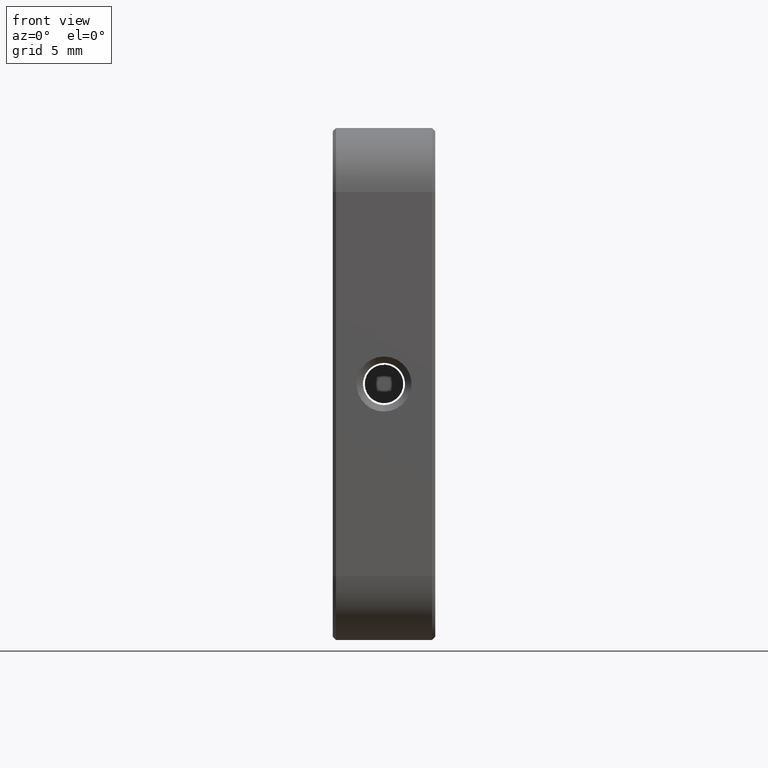
[diagram: clean part render]
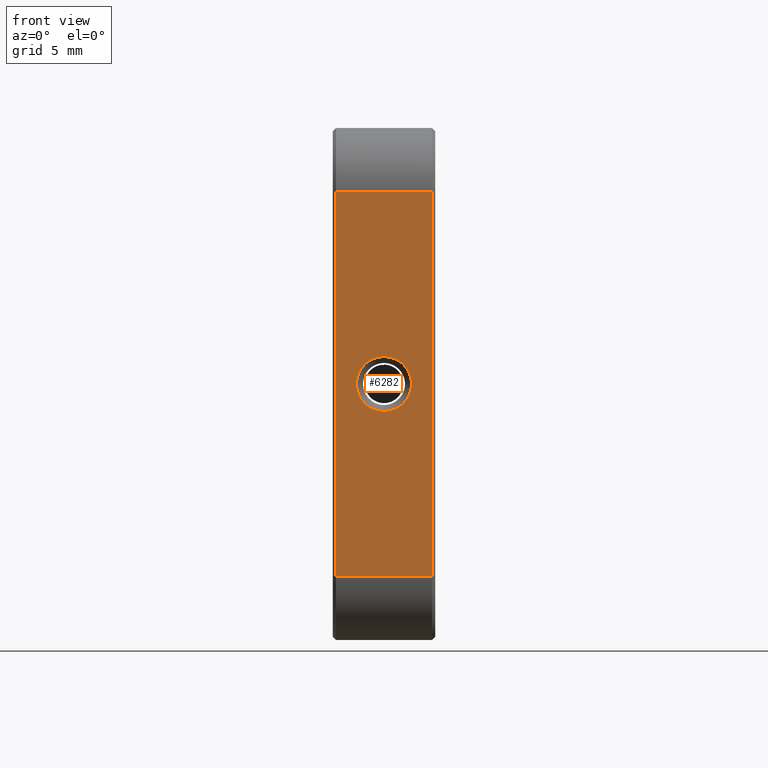
[diagram: same view with one face highlighted and labeled with its STEP entity id]
A machine part, front view. The second image highlights one B-rep face of the part: STEP entity #6282.
In plain terms, the highlighted planar face has unit normal (-0, 1, 0).
Its self-contained STEP definition (entity closure, byte-faithful):
#383 = DIRECTION ( 'NONE',  ( -1.000000000000000000, 0.000000000000000000, 0.000000000000000000 ) ) ;
#450 = EDGE_LOOP ( 'NONE', ( #4605, #8701 ) ) ;
#1119 = AXIS2_PLACEMENT_3D ( 'NONE', #3589, #8301, #7315 ) ;
#1408 = VECTOR ( 'NONE', #5244, 1000.000000000000000 ) ;
#1679 = EDGE_CURVE ( 'NONE', #3016, #8751, #3941, .T. ) ;
#1682 = ORIENTED_EDGE ( 'NONE', *, *, #3208, .T. ) ;
#2049 = CARTESIAN_POINT ( 'NONE',  ( -14.70960063692994879, -17.89069877659089158, 37.85000000000001563 ) ) ;
#2119 = DIRECTION ( 'NONE',  ( 0.000000000000000000, 0.000000000000000000, 1.000000000000000000 ) ) ;
#2155 = VERTEX_POINT ( 'NONE', #2049 ) ;
#2207 = DIRECTION ( 'NONE',  ( 0.000000000000000000, 0.000000000000000000, -1.000000000000000000 ) ) ;
#2296 = CARTESIAN_POINT ( 'NONE',  ( -18.45960063692994879, -17.89069877659089158, 55.00000000000000711 ) ) ;
#2378 = FACE_OUTER_BOUND ( 'NONE', #4214, .T. ) ;
#2617 = LINE ( 'NONE', #9209, #7145 ) ;
#2861 = VERTEX_POINT ( 'NONE', #2296 ) ;
#2888 = DIRECTION ( 'NONE',  ( 0.000000000000000000, 0.000000000000000000, -1.000000000000000000 ) ) ;
#2982 = CARTESIAN_POINT ( 'NONE',  ( -14.70960063692994879, -17.89069877659089158, 40.00000000000001421 ) ) ;
#3016 = VERTEX_POINT ( 'NONE', #3821 ) ;
#3073 = FACE_BOUND ( 'NONE', #450, .T. ) ;
#3208 = EDGE_CURVE ( 'NONE', #8751, #2861, #2617, .T. ) ;
#3332 = ORIENTED_EDGE ( 'NONE', *, *, #8666, .T. ) ;
#3518 = CARTESIAN_POINT ( 'NONE',  ( -10.95960063692994879, -17.89069877659089158, 55.00000000000000711 ) ) ;
#3552 = EDGE_CURVE ( 'NONE', #5456, #3016, #7212, .T. ) ;
#3589 = CARTESIAN_POINT ( 'NONE',  ( -10.70960063692994879, -17.89069877659089158, 60.00000000000001421 ) ) ;
#3821 = CARTESIAN_POINT ( 'NONE',  ( -10.95960063692994879, -17.89069877659089158, 25.00000000000000355 ) ) ;
#3941 = LINE ( 'NONE', #3518, #6616 ) ;
#4214 = EDGE_LOOP ( 'NONE', ( #1682, #3332, #6159, #5987 ) ) ;
#4397 = CARTESIAN_POINT ( 'NONE',  ( -14.70960063692994879, -17.89069877659089158, 40.00000000000001421 ) ) ;
#4406 = CARTESIAN_POINT ( 'NONE',  ( -10.95960063692994879, -17.89069877659089158, 55.00000000000000711 ) ) ;
#4489 = CARTESIAN_POINT ( 'NONE',  ( -14.70960063692994879, -17.89069877659089158, 42.15000000000001279 ) ) ;
#4511 = AXIS2_PLACEMENT_3D ( 'NONE', #2982, #5098, #5067 ) ;
#4605 = ORIENTED_EDGE ( 'NONE', *, *, #5502, .F. ) ;
#5046 = AXIS2_PLACEMENT_3D ( 'NONE', #4397, #8125, #2888 ) ;
#5067 = DIRECTION ( 'NONE',  ( 0.000000000000000000, 0.000000000000000000, -1.000000000000000000 ) ) ;
#5098 = DIRECTION ( 'NONE',  ( -0.000000000000000000, -1.000000000000000000, -0.000000000000000000 ) ) ;
#5244 = DIRECTION ( 'NONE',  ( 1.000000000000000000, -0.000000000000000000, -0.000000000000000000 ) ) ;
#5456 = VERTEX_POINT ( 'NONE', #8822 ) ;
#5502 = EDGE_CURVE ( 'NONE', #2155, #5514, #8555, .T. ) ;
#5514 = VERTEX_POINT ( 'NONE', #4489 ) ;
#5987 = ORIENTED_EDGE ( 'NONE', *, *, #1679, .T. ) ;
#6159 = ORIENTED_EDGE ( 'NONE', *, *, #3552, .T. ) ;
#6282 = ADVANCED_FACE ( 'NONE', ( #3073, #2378 ), #6469, .F. ) ;
#6469 = PLANE ( 'NONE',  #1119 ) ;
#6616 = VECTOR ( 'NONE', #2119, 1000.000000000000000 ) ;
#6617 = VECTOR ( 'NONE', #2207, 1000.000000000000000 ) ;
#6721 = LINE ( 'NONE', #8077, #6617 ) ;
#6812 = EDGE_CURVE ( 'NONE', #5514, #2155, #8127, .T. ) ;
#6820 = CARTESIAN_POINT ( 'NONE',  ( -10.70960063692994879, -17.89069877659089158, 25.00000000000000355 ) ) ;
#7145 = VECTOR ( 'NONE', #383, 1000.000000000000000 ) ;
#7212 = LINE ( 'NONE', #6820, #1408 ) ;
#7315 = DIRECTION ( 'NONE',  ( 0.000000000000000000, -0.000000000000000000, 1.000000000000000000 ) ) ;
#8077 = CARTESIAN_POINT ( 'NONE',  ( -18.45960063692994879, -17.89069877659089158, 60.00000000000001421 ) ) ;
#8125 = DIRECTION ( 'NONE',  ( -0.000000000000000000, -1.000000000000000000, -0.000000000000000000 ) ) ;
#8127 = CIRCLE ( 'NONE', #4511, 2.149999999999999023 ) ;
#8301 = DIRECTION ( 'NONE',  ( -0.000000000000000000, 1.000000000000000000, 0.000000000000000000 ) ) ;
#8555 = CIRCLE ( 'NONE', #5046, 2.149999999999999023 ) ;
#8666 = EDGE_CURVE ( 'NONE', #2861, #5456, #6721, .T. ) ;
#8701 = ORIENTED_EDGE ( 'NONE', *, *, #6812, .F. ) ;
#8751 = VERTEX_POINT ( 'NONE', #4406 ) ;
#8822 = CARTESIAN_POINT ( 'NONE',  ( -18.45960063692994879, -17.89069877659089158, 25.00000000000000355 ) ) ;
#9209 = CARTESIAN_POINT ( 'NONE',  ( -10.70960063692994879, -17.89069877659089158, 55.00000000000000711 ) ) ;